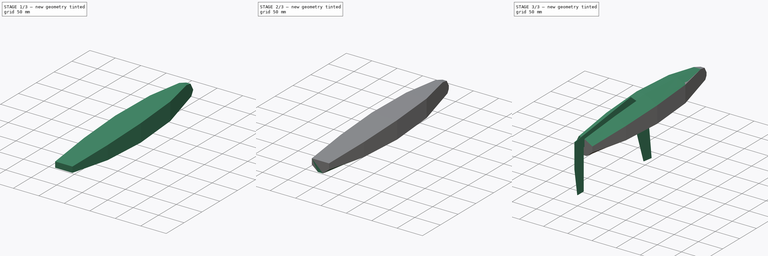
[diagram: build sequence overview — one tinted view per stage of 3, left to right]
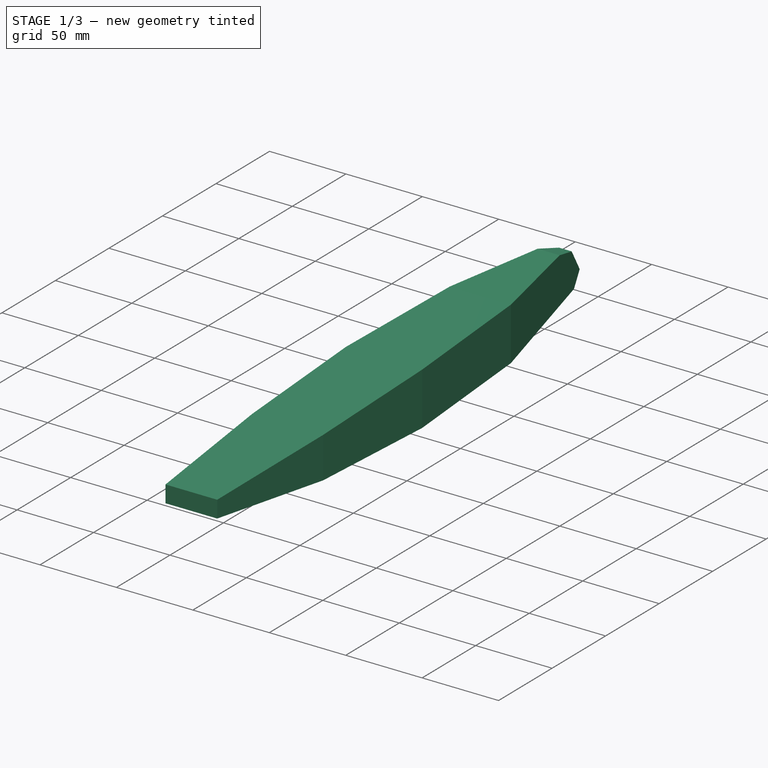
[diagram: stage 1 of 3 — iso view after this stage's code; geometry added in this stage tinted green]
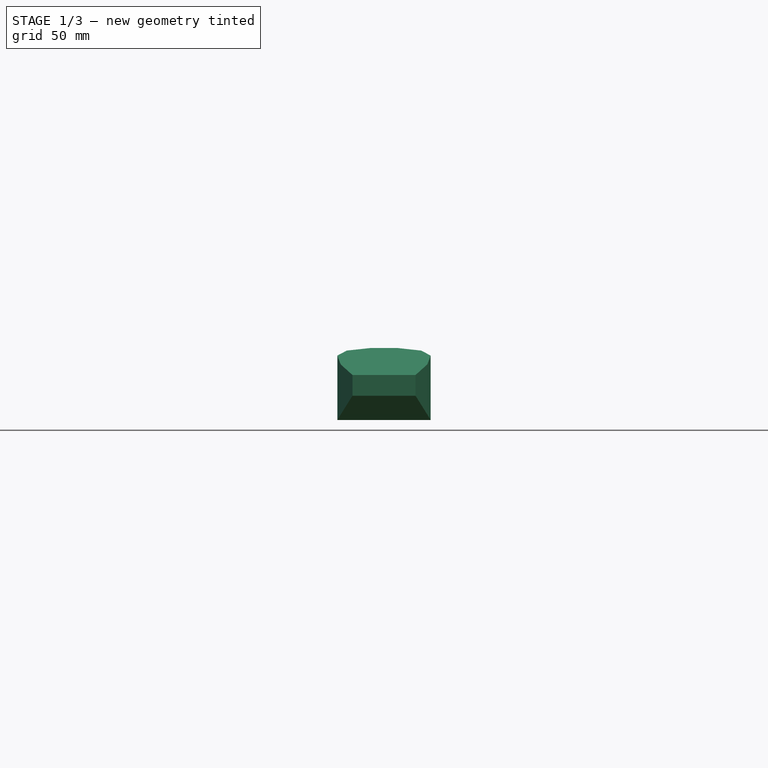
[diagram: stage 1 of 3 — front view after this stage's code; geometry added in this stage tinted green]
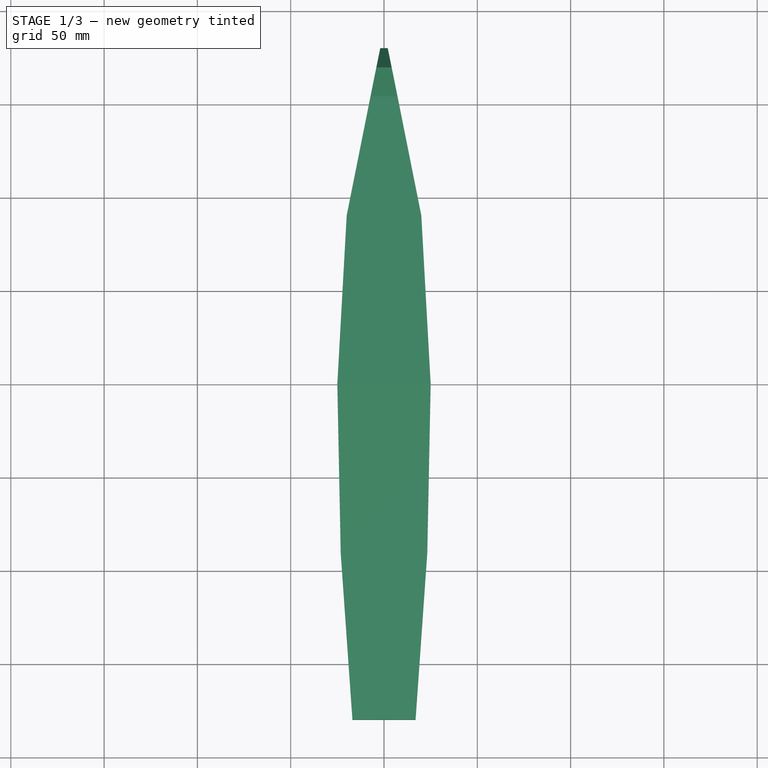
[diagram: stage 1 of 3 — top view after this stage's code; geometry added in this stage tinted green]
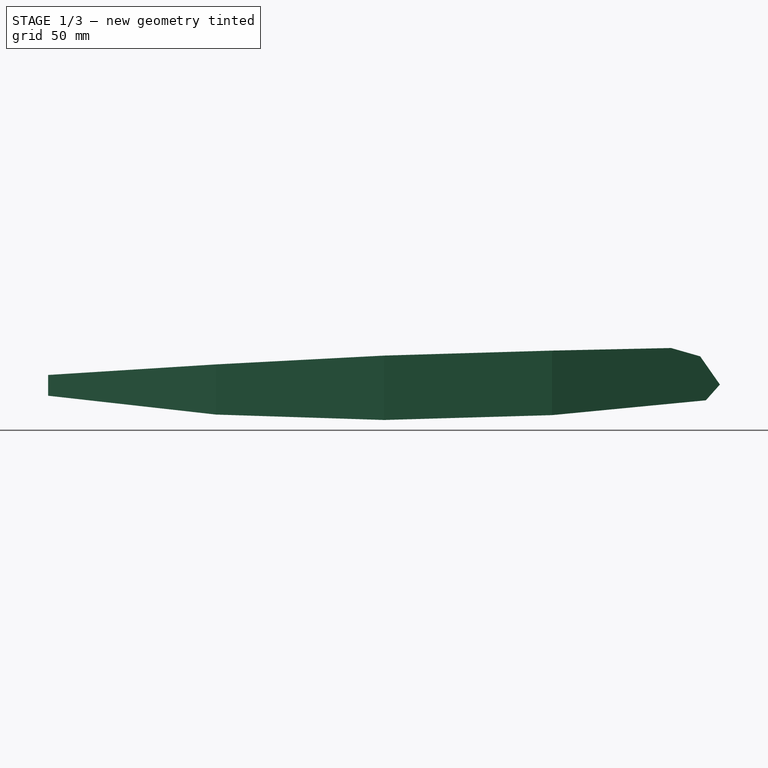
[diagram: stage 1 of 3 — right view after this stage's code; geometry added in this stage tinted green]
FCSTD DOCUMENT  (FreeCAD 0.18R4 (GitTag))
Label: O-cat
License: All rights reserved
LicenseURL: http://en.wikipedia.org/wiki/All_rights_reserved
objects: Sketcher::SketchObject×17, PartDesign::Body×3, PartDesign::Pad×2, PartDesign::AdditiveLoft×2, PartDesign::Pocket×1, PartDesign::Chamfer×1, App::Part×1
note: 31 computed .brp shape members not serialized (recipe doc carries the construction recipe); baked Part::Feature solids carry a one-line shape summary decoded from their .brp

FEATURE [Sketcher::SketchObject] Sketch
  MapMode = 5
  Support = -> [XY_Plane]
  sketch-geometry (20):
    g0: LineSegment [constr] StartX=0 StartY=0 StartZ=0 EndX=0 EndY=180 EndZ=0
    g1: LineSegment [constr] StartX=0 StartY=0 StartZ=0 EndX=0 EndY=-180 EndZ=0
    g2: LineSegment StartX=-16.9104 StartY=-180 StartZ=0 EndX=0 EndY=-180 EndZ=0
    g3: LineSegment StartX=0 StartY=-180 StartZ=0 EndX=16.9104 EndY=-180 EndZ=0
    g4: LineSegment [constr] StartX=-25 StartY=0 StartZ=0 EndX=0 EndY=0 EndZ=0
    g5: LineSegment [constr] StartX=0 StartY=0 StartZ=0 EndX=25 EndY=0 EndZ=0
    g6: LineSegment StartX=-25 StartY=0 StartZ=0 EndX=-20 EndY=90 EndZ=0
    g7: LineSegment StartX=20 StartY=90 StartZ=0 EndX=25 EndY=0 EndZ=0
    g8: LineSegment [constr] StartX=-20 StartY=90 StartZ=0 EndX=0 EndY=90 EndZ=0
    g9: LineSegment [constr] StartX=0 StartY=90 StartZ=0 EndX=20 EndY=90 EndZ=0
    g10: LineSegment [constr] StartX=0 StartY=-90 StartZ=0 EndX=-23.2133 EndY=-90 EndZ=0
    g11: LineSegment [constr] StartX=0 StartY=-90 StartZ=0 EndX=23.2133 EndY=-90 EndZ=0
    g12: LineSegment StartX=-25 StartY=0 StartZ=0 EndX=-23.2133 EndY=-90 EndZ=0
    g13: LineSegment StartX=25 StartY=0 StartZ=0 EndX=23.2133 EndY=-90 EndZ=0
    g14: LineSegment StartX=23.2133 StartY=-90 StartZ=0 EndX=16.9104 EndY=-180 EndZ=0
    g15: LineSegment StartX=-16.9104 StartY=-180 StartZ=0 EndX=-23.2133 EndY=-90 EndZ=0
    g16: LineSegment StartX=0 StartY=180 StartZ=0 EndX=2 EndY=180 EndZ=0
    g17: LineSegment StartX=2 StartY=180 StartZ=0 EndX=20 EndY=90 EndZ=0
    g18: LineSegment StartX=-20 StartY=90 StartZ=0 EndX=-2 EndY=180 EndZ=0
    g19: LineSegment StartX=-2 StartY=180 StartZ=0 EndX=0 EndY=180 EndZ=0
  constraints (52):
    c: Coincident(g0,g-1)
    c: PointOnObject(g0,g-2)
    c: Coincident(g1,g0)
    c: PointOnObject(g1,g-2)
    c: Equal(g1,g0)
    c: DistanceY(g1,g0) = 360
    c: PointOnObject(g6,g-1)
    c: Coincident(g2,g1)
    c: Horizontal(g2)
    c: PointOnObject(g7,g-1)
    c: Coincident(g3,g1)
    c: Horizontal(g3)
    c: Equal(g2,g3)
    c: Coincident(g4,g0)
    c: Coincident(g5,g0)
    c: Equal(g5,g4)
    c: Coincident(g8,g6)
    c: PointOnObject(g8,g0)
    c: Coincident(g9,g8)
    c: Horizontal(g9)
    c: Horizontal(g8)
    c: Equal(g8,g9)
    c: DistanceX(g6,g7) = 50
    c: DistanceX(g6,g7) = 40
    c: DistanceY(g-1,g6) = 90
    c: PointOnObject(g10,g1)
    c: Coincident(g11,g10)
    c: Horizontal(g11)
    c: Horizontal(g10)
    c: Equal(g10,g11)
    c: DistanceY(g10,g-1) = 90
    c: Coincident(g12,g6)
    c: Coincident(g12,g10)
    c: Coincident(g13,g7)
    c: Coincident(g13,g11)
    c: Coincident(g14,g11)
    c: Coincident(g14,g3)
    c: Coincident(g15,g2)
    c: Coincident(g15,g10)
    c: Coincident(g16,g0)
    c: Horizontal(g16)
    c: Coincident(g17,g16)
    c: Coincident(g17,g7)
    c: Coincident(g18,g6)
    c: Coincident(g19,g18)
    c: Coincident(g19,g16)
    c: Horizontal(g19)
    c: Equal(g19,g16)
    c: DistanceX(g18,g16) = 4
    c: Coincident(g5,g7)
    c: Coincident(g4,g6)
    c: Coincident(g9,g7)
FEATURE [PartDesign::Pad] Pad
  Length = 60
  Length2 = 100
  Profile = -> Sketch
  Refine = true
  Reversed = true
  Type = 0
FEATURE [Sketcher::SketchObject] Sketch001
  MapMode = 5
  Placement = pos=(0,0,0) rot=(0.57735,0.57735,0.57735;2.0944rad)
  Support = -> [YZ_Plane]
  sketch-geometry (18):
    g0: LineSegment StartX=-180 StartY=-35.8766 StartZ=0 EndX=-180 EndY=-47 EndZ=0
    g1: LineSegment StartX=180 StartY=-41.0061 StartZ=0 EndX=172.49 EndY=-49.4545 EndZ=0
    g2: LineSegment StartX=-228.224 StartY=155.975 StartZ=0 EndX=260.027 EndY=155.975 EndZ=0
    g3: LineSegment StartX=260.027 StartY=155.975 StartZ=0 EndX=260.027 EndY=-170.497 EndZ=0
    g4: LineSegment StartX=260.027 StartY=-170.497 StartZ=0 EndX=-228.224 EndY=-170.497 EndZ=0
    g5: LineSegment StartX=-228.224 StartY=-170.497 StartZ=0 EndX=-228.224 EndY=155.975 EndZ=0
    g6: LineSegment StartX=-180 StartY=-47 StartZ=0 EndX=-90 EndY=-57.0919 EndZ=0
    g7: LineSegment StartX=90 StartY=-57.3996 StartZ=0 EndX=172.49 EndY=-49.4545 EndZ=0
    g8: LineSegment [constr] StartX=90 StartY=-57.3996 StartZ=0 EndX=90 EndY=-22.8162 EndZ=0
    g9: LineSegment StartX=0 StartY=-25.4918 StartZ=0 EndX=90 EndY=-22.8162 EndZ=0
    g10: LineSegment StartX=0 StartY=-25.4918 StartZ=0 EndX=-90 EndY=-30.2142 EndZ=0
    g11: LineSegment [constr] StartX=-90 StartY=-30.2142 StartZ=0 EndX=-90 EndY=-57.0919 EndZ=0
    g12: LineSegment StartX=-90 StartY=-30.2142 StartZ=0 EndX=-180 EndY=-35.8766 EndZ=0
    g13: LineSegment StartX=90 StartY=-22.8162 StartZ=0 EndX=153.879 EndY=-21.4306 EndZ=0
    g14: LineSegment StartX=-90 StartY=-57.0919 StartZ=0 EndX=0 EndY=-60 EndZ=0
    g15: LineSegment StartX=0 StartY=-60 StartZ=0 EndX=90 EndY=-57.3996 EndZ=0
    g16: LineSegment StartX=153.879 StartY=-21.4306 StartZ=0 EndX=169.448 EndY=-25.9084 EndZ=0
    g17: LineSegment StartX=169.448 StartY=-25.9084 StartZ=0 EndX=180 EndY=-41.0061 EndZ=0
  constraints (35):
    c: Vertical(g0)
    c: DistanceX(g-1,g1) = 180
    c: DistanceX(g0,g-1) = 180
    c: Coincident(g2,g3)
    c: Coincident(g3,g4)
    c: Coincident(g4,g5)
    c: Coincident(g5,g2)
    c: Horizontal(g2)
    c: Horizontal(g4)
    c: Vertical(g3)
    c: Vertical(g5)
    c: Coincident(g0,g6)
    c: Coincident(g7,g1)
    c: Vertical(g8)
    c: Coincident(g9,g8)
    c: DistanceX(g-1,g8) = 90
    c: DistanceX(g6,g-1) = 90
    c: Coincident(g10,g9)
    c: Coincident(g11,g10)
    c: Coincident(g11,g6)
    c: Vertical(g11)
    c: Coincident(g12,g10)
    c: Coincident(g12,g0)
    c: Coincident(g13,g9)
    c: Coincident(g14,g6)
    c: PointOnObject(g14,g-2)
    c: Coincident(g15,g14)
    c: Coincident(g15,g7)
    c: Coincident(g7,g8)
    c: Coincident(g16,g13)
    c: Coincident(g17,g16)
    c: Coincident(g17,g1)
    c: DistanceX(g9,g-1) = 0
    c: DistanceY(g14,g-1) = 60
    c: DistanceY(g0,g-1) = 47
FEATURE [PartDesign::Pocket] Pocket
  BaseFeature = -> Pad
  Length = 5
  Length2 = 100
  Midplane = true
  Profile = -> Sketch001
  Refine = true
  Type = 1
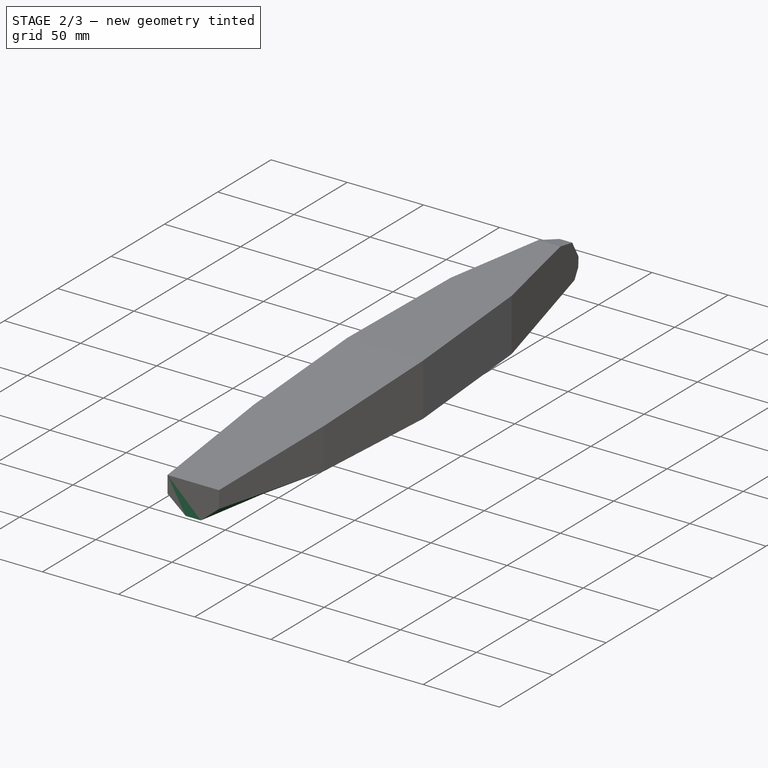
[diagram: stage 2 of 3 — iso view after this stage's code; geometry added in this stage tinted green]
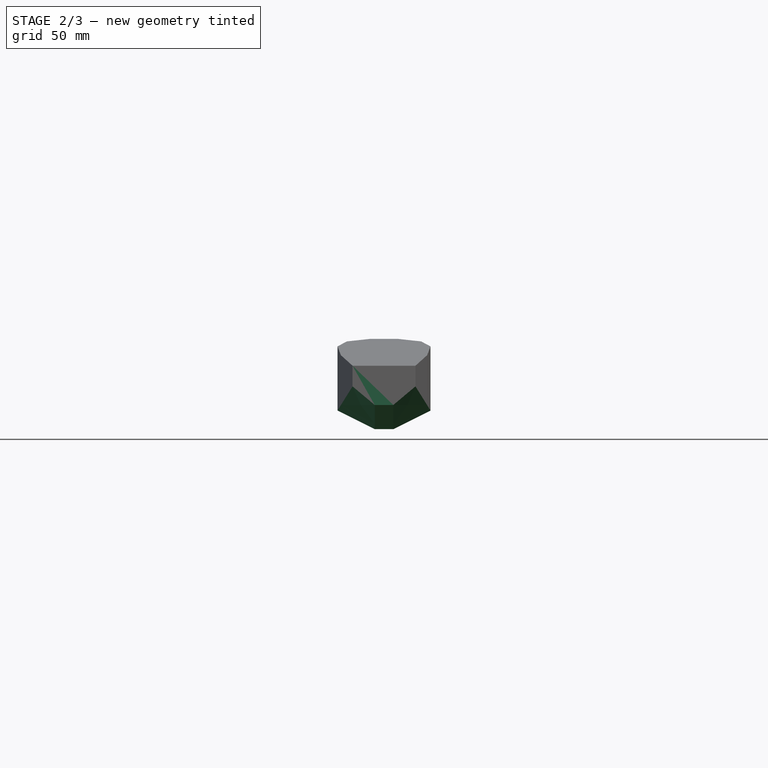
[diagram: stage 2 of 3 — front view after this stage's code; geometry added in this stage tinted green]
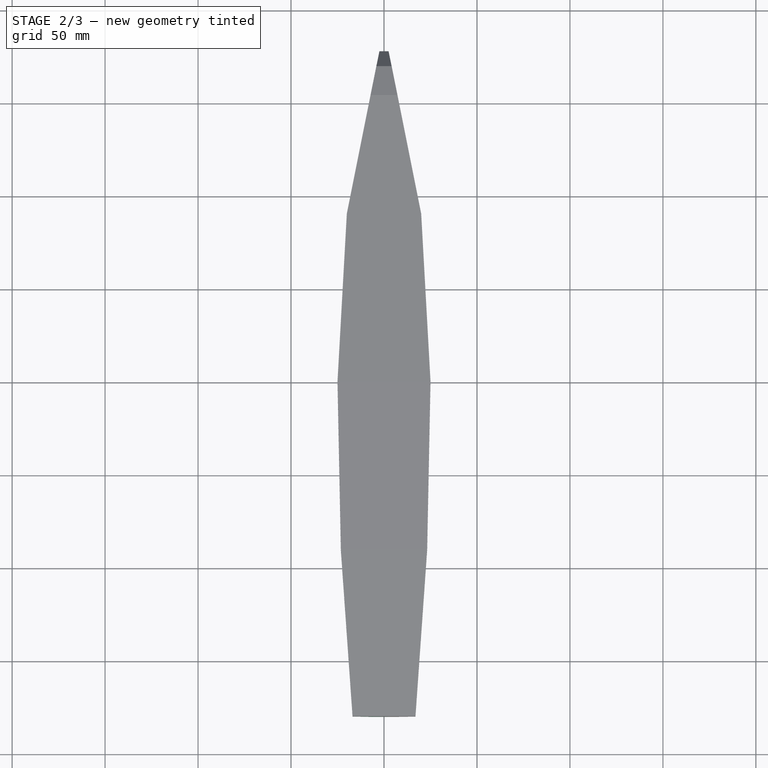
[diagram: stage 2 of 3 — top view after this stage's code; geometry added in this stage tinted green]
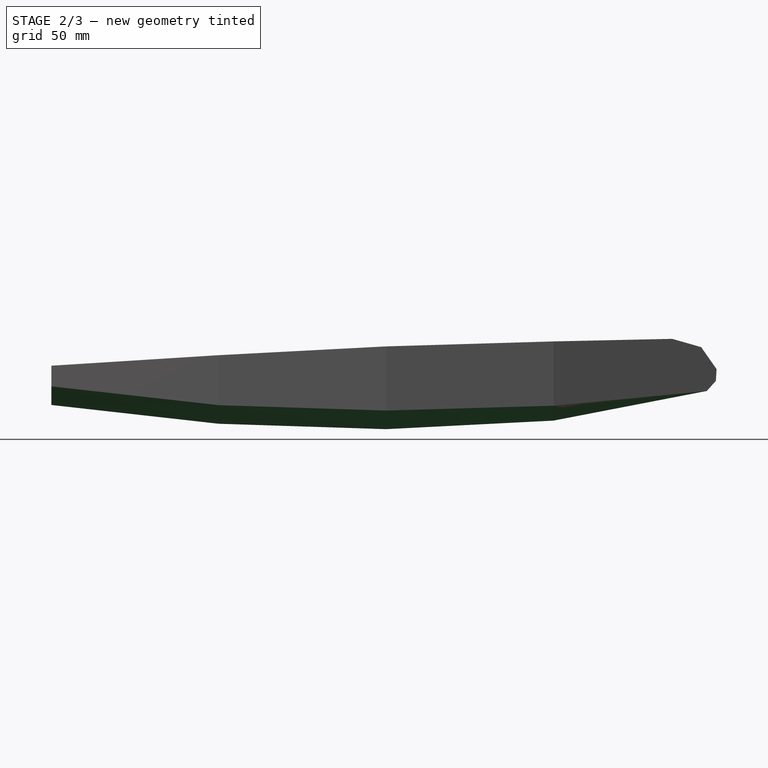
[diagram: stage 2 of 3 — right view after this stage's code; geometry added in this stage tinted green]
FEATURE [PartDesign::Body] Body001
  Group = -> [Sketch003,Pad001]
  Origin = -> Origin001
  Placement = pos=(0,11,0) rot=(0,0,1;0rad)
  Tip = -> Pad001
FEATURE [Sketcher::SketchObject] Sketch005
  AttachmentOffset = pos=(0,0,90) rot=(0,0,1;0rad)
  ExternalGeometry = -> [Pocket]
  MapMode = 5
  Placement = pos=(0,-90,-2e-14) rot=(1,0,0;1.5708rad)
  Support = -> [XZ_Plane]
  sketch-geometry (4):
    g0: LineSegment StartX=-23.2133 StartY=-57.0919 StartZ=0 EndX=23.2133 EndY=-57.0919 EndZ=0
    g1: LineSegment StartX=23.2133 StartY=-57.0919 StartZ=0 EndX=5 EndY=-67.0919 EndZ=0
    g2: LineSegment StartX=5 StartY=-67.0919 StartZ=0 EndX=-5 EndY=-67.0919 EndZ=0
    g3: LineSegment StartX=-5 StartY=-67.0919 StartZ=0 EndX=-23.2133 EndY=-57.0919 EndZ=0
  constraints (10):
    c: Coincident(g-3,g0)
    c: Coincident(g0,g-3)
    c: Coincident(g0,g1)
    c: Coincident(g1,g2)
    c: Coincident(g2,g3)
    c: Coincident(g3,g0)
    c: Horizontal(g2)
    c: Equal(g3,g1)
    c: DistanceX(g2,g2) = 10
    c: DistanceY(g2,g0) = 10
FEATURE [Sketcher::SketchObject] Sketch006
  ExternalGeometry = -> [Pocket]
  MapMode = 5
  Placement = pos=(0,0,0) rot=(1,0,0;1.5708rad)
  Support = -> [XZ_Plane]
  sketch-geometry (4):
    g0: LineSegment StartX=-25 StartY=-60 StartZ=0 EndX=25 EndY=-60 EndZ=0
    g1: LineSegment StartX=25 StartY=-60 StartZ=0 EndX=5 EndY=-70 EndZ=0
    g2: LineSegment StartX=5 StartY=-70 StartZ=0 EndX=-5 EndY=-70 EndZ=0
    g3: LineSegment StartX=-5 StartY=-70 StartZ=0 EndX=-25 EndY=-60 EndZ=0
  constraints (10):
    c: Coincident(g0,g1)
    c: Coincident(g1,g2)
    c: Coincident(g2,g3)
    c: Coincident(g3,g0)
    c: Coincident(g0,g-3)
    c: Coincident(g0,g-3)
    c: Horizontal(g2)
    c: Equal(g3,g1)
    c: DistanceY(g2,g0) = 10
    c: DistanceX(g2,g2) = 10
FEATURE [Sketcher::SketchObject] Sketch007
  AttachmentOffset = pos=(0,0,-90) rot=(0,0,1;0rad)
  ExternalGeometry = -> [Pocket]
  MapMode = 5
  Placement = pos=(0,90,2e-14) rot=(1,0,0;1.5708rad)
  Support = -> [XZ_Plane]
  sketch-geometry (4):
    g0: LineSegment StartX=-20 StartY=-57.3996 StartZ=0 EndX=20 EndY=-57.3996 EndZ=0
    g1: LineSegment StartX=20 StartY=-57.3996 StartZ=0 EndX=4 EndY=-65.3996 EndZ=0
    g2: LineSegment StartX=4 StartY=-65.3996 StartZ=0 EndX=-4 EndY=-65.3996 EndZ=0
    g3: LineSegment StartX=-4 StartY=-65.3996 StartZ=0 EndX=-20 EndY=-57.3996 EndZ=0
  constraints (10):
    c: Coincident(g-3,g0)
    c: Coincident(g0,g-3)
    c: Coincident(g0,g1)
    c: Coincident(g1,g2)
    c: Coincident(g2,g3)
    c: Coincident(g3,g0)
    c: Horizontal(g2)
    c: Equal(g1,g3)
    c: DistanceX(g2,g2) = 8
    c: DistanceY(g2,g0) = 8
FEATURE [Sketcher::SketchObject] Sketch008
  AttachmentOffset = pos=(0,0,180) rot=(0,0,1;0rad)
  ExternalGeometry = -> [Pocket]
  MapMode = 5
  Placement = pos=(0,-180,-4e-14) rot=(1,0,0;1.5708rad)
  Support = -> [XZ_Plane]
  sketch-geometry (4):
    g0: LineSegment StartX=-16.9104 StartY=-47 StartZ=0 EndX=16.9104 EndY=-47 EndZ=0
    g1: LineSegment StartX=16.9104 StartY=-47 StartZ=0 EndX=5 EndY=-57 EndZ=0
    g2: LineSegment StartX=5 StartY=-57 StartZ=0 EndX=-5 EndY=-57 EndZ=0
    g3: LineSegment StartX=-5 StartY=-57 StartZ=0 EndX=-16.9104 EndY=-47 EndZ=0
  constraints (10):
    c: Coincident(g-3,g0)
    c: Coincident(g0,g-3)
    c: Coincident(g0,g1)
    c: Coincident(g1,g2)
    c: Horizontal(g2)
    c: Coincident(g2,g3)
    c: Coincident(g3,g0)
    c: Equal(g3,g1)
    c: DistanceX(g2,g2) = 10
    c: DistanceY(g2,g0) = 10
FEATURE [PartDesign::AdditiveLoft] AdditiveLoft
  BaseFeature = -> Pocket
  Closed = false
  Profile = -> Pocket [Face16]
  Refine = true
  Ruled = true
  Sections = -> [Sketch007,Sketch006,Sketch005,Sketch008]
FEATURE [PartDesign::Chamfer] Chamfer
  Base = -> AdditiveLoft [Edge51]
  BaseFeature = -> AdditiveLoft
  Size = 4
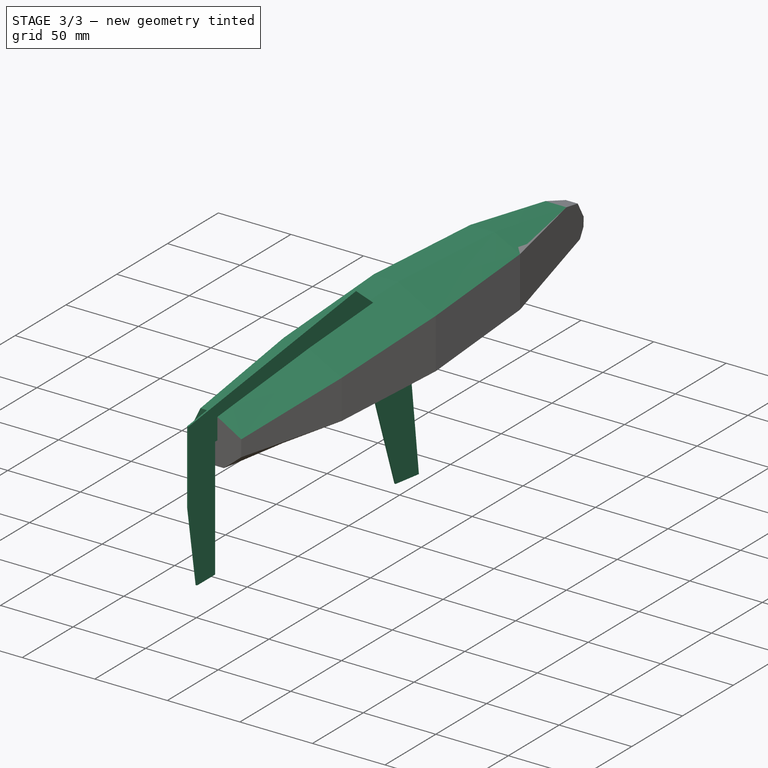
[diagram: stage 3 of 3 — iso view after this stage's code; geometry added in this stage tinted green]
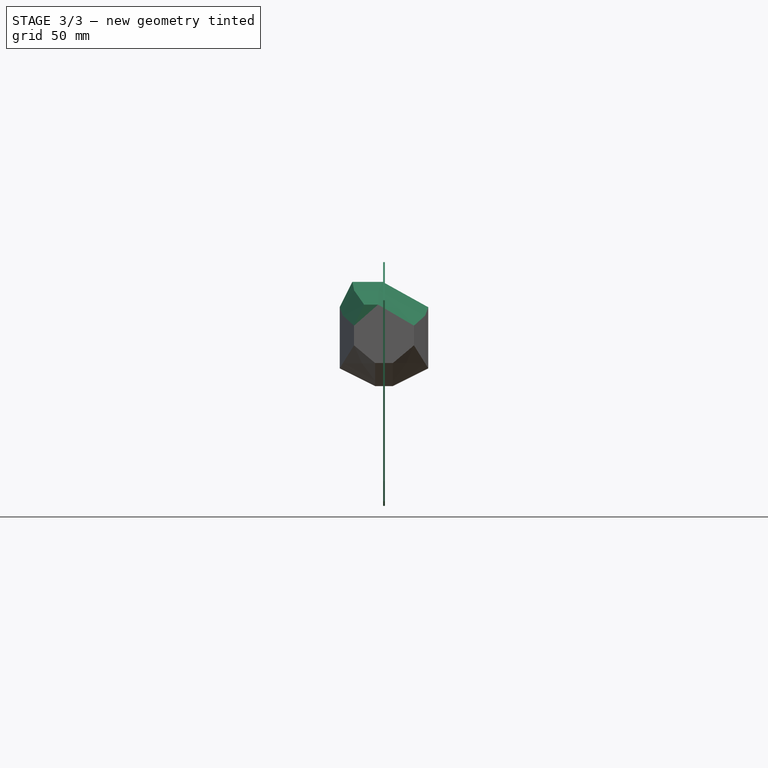
[diagram: stage 3 of 3 — front view after this stage's code; geometry added in this stage tinted green]
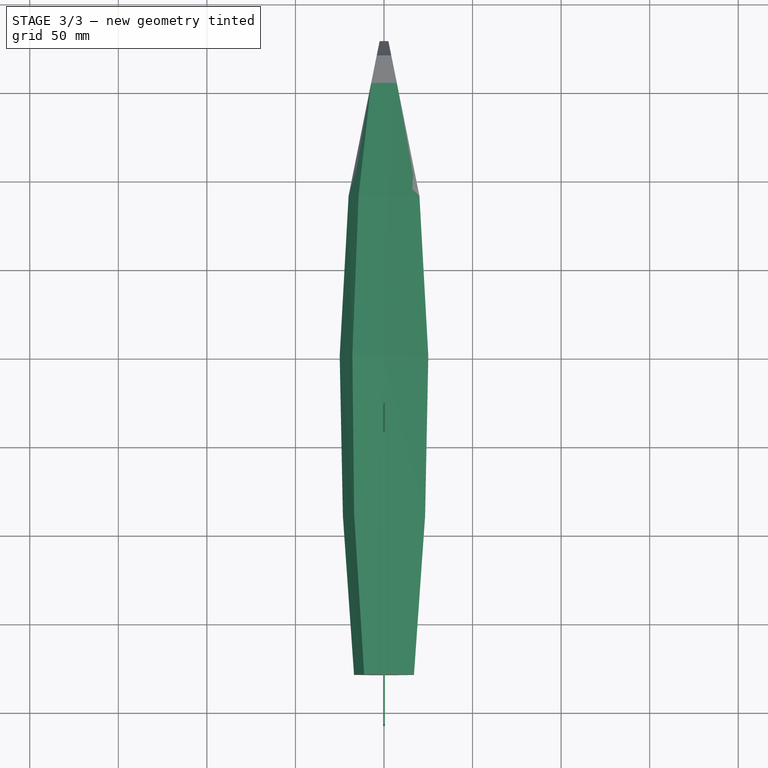
[diagram: stage 3 of 3 — top view after this stage's code; geometry added in this stage tinted green]
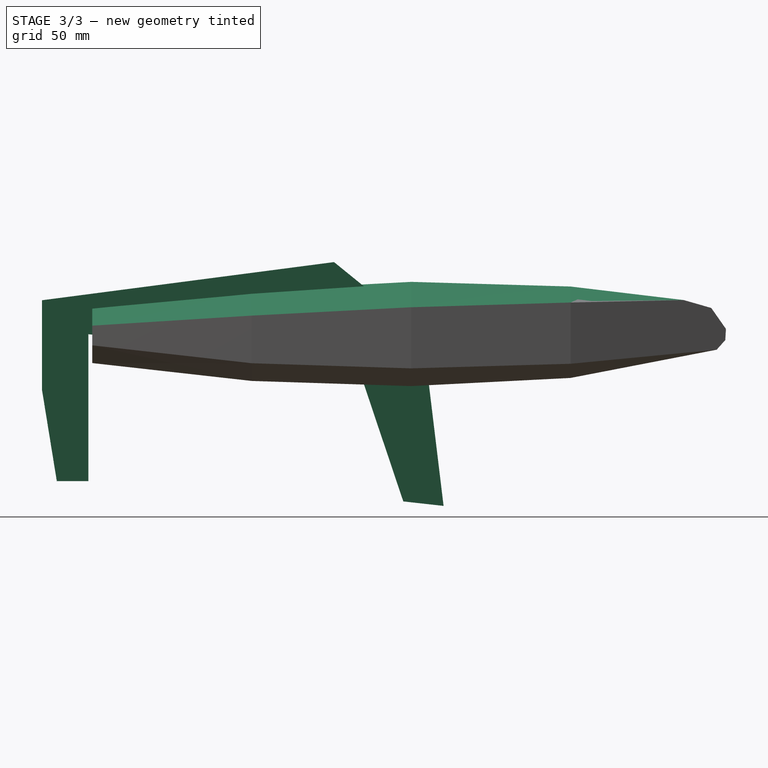
[diagram: stage 3 of 3 — right view after this stage's code; geometry added in this stage tinted green]
FEATURE [Sketcher::SketchObject] Sketch003
  MapMode = 5
  Placement = pos=(0,0,0) rot=(0.57735,0.57735,0.57735;2.0944rad)
  Support = -> [YZ_Plane001]
  sketch-geometry (10):
    g0: LineSegment StartX=6.5778 StartY=-40.6415 StartZ=0 EndX=18.3025 EndY=-137.642 EndZ=0
    g1: LineSegment StartX=18.3025 StartY=-137.642 StartZ=0 EndX=-4.42831 EndY=-135.101 EndZ=0
    g2: LineSegment StartX=-4.42831 StartY=-135.101 StartZ=0 EndX=-30.9265 EndY=-56.3078 EndZ=0
    g3: LineSegment StartX=-43.5369 StartY=0 StartZ=0 EndX=6.5778 EndY=-40.6415 EndZ=0
    g4: LineSegment StartX=-30.9265 StartY=-56.3078 StartZ=0 EndX=-182.248 EndY=-40.7248 EndZ=0
    g5: LineSegment StartX=-182.248 StartY=-40.7248 StartZ=0 EndX=-182.248 EndY=-123.627 EndZ=0
    g6: LineSegment StartX=-182.248 StartY=-123.627 StartZ=0 EndX=-200.052 EndY=-123.627 EndZ=0
    g7: LineSegment StartX=-200.052 StartY=-123.627 StartZ=0 EndX=-208.371 EndY=-72.3167 EndZ=0
    g8: LineSegment StartX=-208.371 StartY=-72.3167 StartZ=0 EndX=-208.371 EndY=-21.5374 EndZ=0
    g9: LineSegment StartX=-208.371 StartY=-21.5374 StartZ=0 EndX=-43.5369 EndY=0 EndZ=0
  constraints (14):
    c: Coincident(g0,g1)
    c: Coincident(g1,g2)
    c: PointOnObject(g3,g-1)
    c: Coincident(g3,g0)
    c: Coincident(g4,g2)
    c: Coincident(g5,g4)
    c: Vertical(g5)
    c: Coincident(g6,g5)
    c: Horizontal(g6)
    c: Coincident(g7,g6)
    c: Coincident(g8,g7)
    c: Vertical(g8)
    c: Coincident(g9,g8)
    c: Coincident(g9,g3)
FEATURE [PartDesign::Pad] Pad001
  Length = 1
  Length2 = 100
  Midplane = true
  Placement = pos=(0,0,0) rot=(0.57735,0.57735,0.57735;2.0944rad)
  Profile = -> Sketch003
  Refine = true
  Type = 0
FEATURE [Sketcher::SketchObject] Sketch009
  AttachmentOffset = pos=(0,0,-90) rot=(0,0,1;0rad)
  ExternalGeometry = -> [Chamfer]
  MapMode = 5
  Placement = pos=(0,90,2e-14) rot=(1,0,0;1.5708rad)
  Support = -> [XZ_Plane]
  sketch-geometry (4):
    g0: LineSegment StartX=-20 StartY=-22.8162 StartZ=0 EndX=-14.3498 EndY=-13.7894 EndZ=0
    g1: LineSegment StartX=-14.3498 StartY=-13.7894 StartZ=0 EndX=2.30168 EndY=-13.7894 EndZ=0
    g2: LineSegment StartX=2.30168 StartY=-13.7894 StartZ=0 EndX=20 EndY=-22.8162 EndZ=0
    g3: LineSegment StartX=20 StartY=-22.8162 StartZ=0 EndX=-20 EndY=-22.8162 EndZ=0
  constraints (7):
    c: Coincident(g-3,g0)
    c: Coincident(g0,g1)
    c: Horizontal(g1)
    c: Coincident(g1,g2)
    c: Coincident(g2,g-3)
    c: Coincident(g2,g3)
    c: Coincident(g3,g0)
FEATURE [Sketcher::SketchObject] Sketch010
  ExternalGeometry = -> [Chamfer]
  MapMode = 5
  Placement = pos=(0,0,0) rot=(1,0,0;1.5708rad)
  Support = -> [XZ_Plane]
  sketch-geometry (4):
    g0: LineSegment StartX=25 StartY=-25.4918 StartZ=0 EndX=-0.791641 EndY=-11.1616 EndZ=0
    g1: LineSegment StartX=-0.791641 StartY=-11.1616 StartZ=0 EndX=-17.8498 EndY=-11.1616 EndZ=0
    g2: LineSegment StartX=-17.8498 StartY=-11.1616 StartZ=0 EndX=-25 EndY=-25.4918 EndZ=0
    g3: LineSegment StartX=-25 StartY=-25.4918 StartZ=0 EndX=25 EndY=-25.4918 EndZ=0
  constraints (7):
    c: Coincident(g-3,g0)
    c: Coincident(g0,g1)
    c: Horizontal(g1)
    c: Coincident(g2,g1)
    c: Coincident(g2,g-3)
    c: Coincident(g3,g2)
    c: Coincident(g3,g0)
FEATURE [Sketcher::SketchObject] Sketch011
  AttachmentOffset = pos=(0,0,90) rot=(0,0,1;0rad)
  ExternalGeometry = -> [Chamfer]
  MapMode = 5
  Placement = pos=(0,-90,-2e-14) rot=(1,0,0;1.5708rad)
  Support = -> [XZ_Plane]
  sketch-geometry (4):
    g0: LineSegment StartX=-23.2133 StartY=-30.2142 StartZ=0 EndX=-16.8415 EndY=-15.9999 EndZ=0
    g1: LineSegment StartX=-16.8415 StartY=-15.9999 StartZ=0 EndX=-2.96919 EndY=-15.9999 EndZ=0
    g2: LineSegment StartX=-2.96919 StartY=-15.9999 StartZ=0 EndX=23.2133 EndY=-30.2142 EndZ=0
    g3: LineSegment StartX=23.2133 StartY=-30.2142 StartZ=0 EndX=-23.2133 EndY=-30.2142 EndZ=0
  constraints (7):
    c: Coincident(g0,g1)
    c: Coincident(g1,g2)
    c: Coincident(g2,g3)
    c: Coincident(g0,g3)
    c: Coincident(g0,g-3)
    c: Coincident(g2,g-3)
    c: Horizontal(g1)
FEATURE [Sketcher::SketchObject] Sketch012
  AttachmentOffset = pos=(0,0,180) rot=(0,0,1;0rad)
  ExternalGeometry = -> [Chamfer]
  MapMode = 5
  Placement = pos=(0,-180,-4e-14) rot=(1,0,0;1.5708rad)
  Support = -> [XZ_Plane]
  sketch-geometry (4):
    g0: LineSegment StartX=-16.9104 StartY=-35.8766 StartZ=0 EndX=-11.2085 EndY=-24.0034 EndZ=0
    g1: LineSegment StartX=-11.2085 StartY=-24.0034 StartZ=0 EndX=-3.36832 EndY=-24.0034 EndZ=0
    g2: LineSegment StartX=-3.36832 StartY=-24.0034 StartZ=0 EndX=16.9104 EndY=-35.8766 EndZ=0
    g3: LineSegment StartX=16.9104 StartY=-35.8766 StartZ=0 EndX=-16.9104 EndY=-35.8766 EndZ=0
  constraints (7):
    c: Coincident(g-3,g0)
    c: Coincident(g0,g1)
    c: Horizontal(g1)
    c: Coincident(g1,g2)
    c: Coincident(g2,g-3)
    c: Coincident(g2,g3)
    c: Coincident(g3,g0)
FEATURE [PartDesign::AdditiveLoft] AdditiveLoft001
  BaseFeature = -> Chamfer
  Closed = false
  Profile = -> Chamfer [Face6]
  Refine = true
  Ruled = true
  Sections = -> [Sketch009,Sketch010,Sketch011,Sketch012]
FEATURE [PartDesign::Body] Body
  Group = -> [Sketch,Pad,Sketch001,Pocket,Sketch005,Sketch006,Sketch007,Sketch008,AdditiveLoft,Chamfer,Sketch009,Sketch010,Sketch011,Sketch012,AdditiveLoft001]
  Origin = -> Origin
  Tip = -> AdditiveLoft001
FEATURE [Sketcher::SketchObject] Sketch013
  AttachmentOffset = pos=(0,0,180) rot=(0,0,1;0rad)
  MapMode = 5
  Placement = pos=(0,-180,4e-14) rot=(1,0,0;1.5708rad)
  Support = -> [XZ_Plane003]
  sketch-geometry (24):
    g0: LineSegment StartX=-6.32168 StartY=-24.2228 StartZ=0 EndX=1.98196 EndY=-24.2228 EndZ=0
    g1: LineSegment StartX=1.98196 StartY=-24.2228 StartZ=0 EndX=10.2832 EndY=-35.9299 EndZ=0
    g2: LineSegment StartX=10.2832 StartY=-35.9299 StartZ=0 EndX=10.2832 EndY=-46.9373 EndZ=0
    g3: LineSegment StartX=10.2832 StartY=-46.9373 StartZ=0 EndX=4.96024 EndY=-57.0574 EndZ=0
    g4: LineSegment StartX=4.96024 StartY=-57.0574 StartZ=0 EndX=-4.86091 EndY=-57.0574 EndZ=0
    g5: LineSegment StartX=-4.86091 StartY=-57.0574 StartZ=0 EndX=-12.8395 EndY=-46.5342 EndZ=0
    g6: LineSegment StartX=-12.8395 StartY=-46.5342 StartZ=0 EndX=-12.8395 EndY=-36.1738 EndZ=0
    g7: LineSegment StartX=-12.8395 StartY=-36.1738 StartZ=0 EndX=-6.32168 EndY=-24.2228 EndZ=0
    g8: LineSegment StartX=-6.32168 StartY=-23.2228 StartZ=0 EndX=1.98196 EndY=-23.2228 EndZ=0
    g9: LineSegment StartX=2.7977 StartY=-23.6444 StartZ=0 EndX=11.0989 EndY=-35.3515 EndZ=0
    g10: LineSegment StartX=11.2832 StartY=-35.9299 StartZ=0 EndX=11.2832 EndY=-46.9373 EndZ=0
    g11: LineSegment StartX=11.1682 StartY=-47.4028 StartZ=0 EndX=5.84528 EndY=-57.523 EndZ=0
    g12: LineSegment StartX=4.96024 StartY=-58.0574 StartZ=0 EndX=-4.86091 EndY=-58.0574 EndZ=0
    g13: LineSegment StartX=-5.65777 StartY=-57.6616 StartZ=0 EndX=-13.6364 EndY=-47.1384 EndZ=0
    g14: LineSegment StartX=-13.8395 StartY=-46.5342 StartZ=0 EndX=-13.8395 EndY=-36.1738 EndZ=0
    g15: LineSegment StartX=-13.7175 StartY=-35.695 StartZ=0 EndX=-7.19961 EndY=-23.744 EndZ=0
    g16: ArcOfCircle CenterX=-6.32168 CenterY=-24.2228 CenterZ=0 NormalX=0 NormalY=0 NormalZ=1 AngleXU=0 Radius=1 StartAngle=1.5708 EndAngle=2.6423
    g17: ArcOfCircle CenterX=1.98196 CenterY=-24.2228 CenterZ=0 NormalX=0 NormalY=0 NormalZ=1 AngleXU=0 Radius=1 StartAngle=0.616792 EndAngle=1.5708
    g18: ArcOfCircle CenterX=10.2832 CenterY=-35.9299 CenterZ=0 NormalX=0 NormalY=0 NormalZ=1 AngleXU=0 Radius=1 StartAngle=-1.8e-15 EndAngle=0.616792
    g19: ArcOfCircle CenterX=10.2832 CenterY=-46.9373 CenterZ=0 NormalX=0 NormalY=0 NormalZ=1 AngleXU=0 Radius=1 StartAngle=5.79898 EndAngle=6.28319
    g20: ArcOfCircle CenterX=4.96024 CenterY=-57.0574 CenterZ=0 NormalX=0 NormalY=0 NormalZ=1 AngleXU=0 Radius=1 StartAngle=4.71239 EndAngle=5.79898
    g21: ArcOfCircle CenterX=-4.86091 CenterY=-57.0574 CenterZ=0 NormalX=0 NormalY=0 NormalZ=1 AngleXU=0 Radius=1 StartAngle=3.79032 EndAngle=4.71239
    g22: ArcOfCircle CenterX=-12.8395 CenterY=-46.5342 CenterZ=0 NormalX=0 NormalY=0 NormalZ=1 AngleXU=0 Radius=1 StartAngle=3.14159 EndAngle=3.79032
    g23: ArcOfCircle CenterX=-12.8395 CenterY=-36.1738 CenterZ=0 NormalX=0 NormalY=0 NormalZ=1 AngleXU=0 Radius=1 StartAngle=2.6423 EndAngle=3.14159
  constraints (44):
    c: Horizontal(g0)
    c: Coincident(g0,g1)
    c: Coincident(g1,g2)
    c: Vertical(g2)
    c: Coincident(g2,g3)
    c: Coincident(g3,g4)
    c: Horizontal(g4)
    c: Coincident(g4,g5)
    c: Coincident(g5,g6)
    c: Vertical(g6)
    c: Coincident(g6,g7)
    c: Coincident(g7,g0)
    c: Tangent(g15,g16) = 1.5708
    c: Tangent(g8,g16) = 1.5708
    c: Tangent(g8,g17) = 1.5708
    c: Tangent(g9,g17) = 1.5708
    c: Tangent(g9,g18) = 1.5708
    c: Tangent(g10,g18) = 1.5708
    c: Tangent(g10,g19) = 1.5708
    c: Tangent(g11,g19) = 1.5708
    c: Tangent(g11,g20) = 1.5708
    c: Tangent(g12,g20) = 1.5708
    c: Tangent(g12,g21) = 1.5708
    c: Tangent(g13,g21) = 1.5708
    c: Tangent(g13,g22) = 1.5708
    c: Tangent(g14,g22) = 1.5708
    c: Tangent(g14,g23) = 1.5708
    c: Tangent(g15,g23) = 1.5708
    c: Coincident(g16,g0)
    c: Coincident(g0,g17)
    c: Coincident(g18,g1)
    c: Coincident(g19,g2)
    c: Coincident(g20,g3)
    c: Coincident(g21,g4)
    c: Coincident(g22,g5)
    c: Coincident(g6,g23)
    c: Radius(g17) = 1
    c: Equal(g16,g17)
    c: Equal(g17,g18)
    c: Equal(g18,g19)
    c: Equal(g19,g20)
    c: Equal(g20,g21)
    c: Equal(g21,g22)
    c: Equal(g22,g23)
FEATURE [Sketcher::SketchObject] Sketch014
  AttachmentOffset = pos=(0,0,90) rot=(0,0,1;0rad)
  MapMode = 5
  Placement = pos=(0,-90,2e-14) rot=(1,0,0;1.5708rad)
  Support = -> [XZ_Plane003]
  sketch-geometry (24):
    g0: LineSegment StartX=-8.82392 StartY=-16.4459 StartZ=0 EndX=1.28875 EndY=-16.4459 EndZ=0
    g1: LineSegment StartX=1.28875 StartY=-16.4459 StartZ=0 EndX=13.7876 EndY=-29.825 EndZ=0
    g2: LineSegment StartX=13.7876 StartY=-29.825 StartZ=0 EndX=13.7876 EndY=-56.885 EndZ=0
    g3: LineSegment StartX=13.7876 StartY=-56.885 StartZ=0 EndX=4.98346 EndY=-67.1267 EndZ=0
    g4: LineSegment StartX=4.98346 StartY=-67.1267 StartZ=0 EndX=-5.21136 EndY=-67.1267 EndZ=0
    g5: LineSegment StartX=-5.21136 StartY=-67.1267 StartZ=0 EndX=-16.454 EndY=-56.5917 EndZ=0
    g6: LineSegment StartX=-16.454 StartY=-56.5917 StartZ=0 EndX=-16.454 EndY=-30.0808 EndZ=0
    g7: LineSegment StartX=-16.454 StartY=-30.0808 StartZ=0 EndX=-8.82392 EndY=-16.4459 EndZ=0
    g8: LineSegment StartX=-8.82392 StartY=-15.4459 StartZ=0 EndX=1.28875 EndY=-15.4459 EndZ=0
    g9: LineSegment StartX=2.01949 StartY=-15.7632 StartZ=0 EndX=14.5183 EndY=-29.1423 EndZ=0
    g10: LineSegment StartX=14.7876 StartY=-29.825 StartZ=0 EndX=14.7876 EndY=-56.885 EndZ=0
    g11: LineSegment StartX=14.5459 StartY=-57.5369 StartZ=0 EndX=5.74178 EndY=-67.7786 EndZ=0
    g12: LineSegment StartX=4.98346 StartY=-68.1267 StartZ=0 EndX=-5.21136 EndY=-68.1267 EndZ=0
    g13: LineSegment StartX=-5.89513 StartY=-67.8564 StartZ=0 EndX=-17.1378 EndY=-57.3214 EndZ=0
    g14: LineSegment StartX=-17.454 StartY=-56.5917 StartZ=0 EndX=-17.454 EndY=-30.0808 EndZ=0
    g15: LineSegment StartX=-17.3267 StartY=-29.5925 StartZ=0 EndX=-9.69657 EndY=-15.9575 EndZ=0
    g16: ArcOfCircle CenterX=-8.82392 CenterY=-16.4459 CenterZ=0 NormalX=0 NormalY=0 NormalZ=1 AngleXU=0 Radius=1 StartAngle=1.5708 EndAngle=2.63141
    g17: ArcOfCircle CenterX=1.28875 CenterY=-16.4459 CenterZ=0 NormalX=0 NormalY=0 NormalZ=1 AngleXU=0 Radius=1 StartAngle=0.751396 EndAngle=1.5708
    g18: ArcOfCircle CenterX=13.7876 CenterY=-29.825 CenterZ=0 NormalX=0 NormalY=0 NormalZ=1 AngleXU=0 Radius=1 StartAngle=0 EndAngle=0.751396
    g19: ArcOfCircle CenterX=13.7876 CenterY=-56.885 CenterZ=0 NormalX=0 NormalY=0 NormalZ=1 AngleXU=0 Radius=1 StartAngle=5.57312 EndAngle=6.28319
    g20: ArcOfCircle CenterX=4.98346 CenterY=-67.1267 CenterZ=0 NormalX=0 NormalY=0 NormalZ=1 AngleXU=0 Radius=1 StartAngle=4.71239 EndAngle=5.57312
    g21: ArcOfCircle CenterX=-5.21136 CenterY=-67.1267 CenterZ=0 NormalX=0 NormalY=0 NormalZ=1 AngleXU=0 Radius=1 StartAngle=3.95947 EndAngle=4.71239
    g22: ArcOfCircle CenterX=-16.454 CenterY=-56.5917 CenterZ=0 NormalX=0 NormalY=0 NormalZ=1 AngleXU=0 Radius=1 StartAngle=3.14159 EndAngle=3.95947
    g23: ArcOfCircle CenterX=-16.454 CenterY=-30.0808 CenterZ=0 NormalX=0 NormalY=0 NormalZ=1 AngleXU=0 Radius=1 StartAngle=2.63141 EndAngle=3.14159
  constraints (44):
    c: Horizontal(g0)
    c: Coincident(g0,g1)
    c: Coincident(g1,g2)
    c: Vertical(g2)
    c: Coincident(g2,g3)
    c: Coincident(g3,g4)
    c: Horizontal(g4)
    c: Coincident(g4,g5)
    c: Coincident(g5,g6)
    c: Vertical(g6)
    c: Coincident(g6,g7)
    c: Coincident(g7,g0)
    c: Tangent(g15,g16) = 1.5708
    c: Tangent(g8,g16) = 1.5708
    c: Tangent(g8,g17) = 1.5708
    c: Tangent(g9,g17) = 1.5708
    c: Tangent(g9,g18) = 1.5708
    c: Tangent(g10,g18) = 1.5708
    c: Tangent(g10,g19) = 1.5708
    c: Tangent(g11,g19) = 1.5708
    c: Tangent(g11,g20) = 1.5708
    c: Tangent(g12,g20) = 1.5708
    c: Tangent(g12,g21) = 1.5708
    c: Tangent(g13,g21) = 1.5708
    c: Tangent(g13,g22) = 1.5708
    c: Tangent(g14,g22) = 1.5708
    c: Tangent(g14,g23) = 1.5708
    c: Tangent(g15,g23) = 1.5708
    c: Coincident(g16,g0)
    c: Coincident(g0,g17)
    c: Coincident(g18,g1)
    c: Coincident(g19,g2)
    c: Coincident(g20,g3)
    c: Coincident(g21,g4)
    c: Coincident(g22,g5)
    c: Coincident(g6,g23)
    c: Radius(g17) = 1
    c: Equal(g16,g17)
    c: Equal(g17,g18)
    c: Equal(g18,g19)
    c: Equal(g19,g20)
    c: Equal(g20,g21)
    c: Equal(g21,g22)
    c: Equal(g22,g23)
FEATURE [Sketcher::SketchObject] Sketch015
  MapMode = 5
  Placement = pos=(0,0,0) rot=(1,0,0;1.5708rad)
  Support = -> [XZ_Plane003]
  sketch-geometry (24):
    g0: LineSegment StartX=-12.2266 StartY=-12.0441 StartZ=0 EndX=-0.733574 EndY=-12.0441 EndZ=0
    g1: LineSegment StartX=-0.733574 StartY=-12.0441 StartZ=0 EndX=14.737 EndY=-25.1065 EndZ=0
    g2: LineSegment StartX=14.737 StartY=-25.1065 StartZ=0 EndX=14.737 EndY=-59.6227 EndZ=0
    g3: LineSegment StartX=14.737 StartY=-59.6227 StartZ=0 EndX=4.98151 EndY=-70.2141 EndZ=0
    g4: LineSegment StartX=4.98151 StartY=-70.2141 StartZ=0 EndX=-4.94146 EndY=-70.2141 EndZ=0
    g5: LineSegment StartX=-4.94146 StartY=-70.2141 StartZ=0 EndX=-16.2916 EndY=-59.822 EndZ=0
    g6: LineSegment StartX=-16.2916 StartY=-59.822 StartZ=0 EndX=-16.2916 EndY=-26.4119 EndZ=0
    g7: LineSegment StartX=-16.2916 StartY=-26.4119 StartZ=0 EndX=-12.2266 EndY=-12.0441 EndZ=0
    g8: LineSegment StartX=-12.2266 StartY=-11.0441 StartZ=0 EndX=-0.733574 EndY=-11.0441 EndZ=0
    g9: LineSegment StartX=-0.0884401 StartY=-11.28 StartZ=0 EndX=15.3822 EndY=-24.3424 EndZ=0
    g10: LineSegment StartX=15.737 StartY=-25.1065 StartZ=0 EndX=15.737 EndY=-59.6227 EndZ=0
    g11: LineSegment StartX=15.4726 StartY=-60.3002 StartZ=0 EndX=5.71705 EndY=-70.8916 EndZ=0
    g12: LineSegment StartX=4.98151 StartY=-71.2141 StartZ=0 EndX=-4.94146 EndY=-71.2141 EndZ=0
    g13: LineSegment StartX=-5.61676 StartY=-70.9517 StartZ=0 EndX=-16.9669 EndY=-60.5595 EndZ=0
    g14: LineSegment StartX=-17.2916 StartY=-59.822 StartZ=0 EndX=-17.2916 EndY=-26.4119 EndZ=0
    g15: LineSegment StartX=-17.2538 StartY=-26.1397 StartZ=0 EndX=-13.1888 EndY=-11.7718 EndZ=0
    g16: ArcOfCircle CenterX=-12.2266 CenterY=-12.0441 CenterZ=0 NormalX=0 NormalY=0 NormalZ=1 AngleXU=0 Radius=1 StartAngle=1.5708 EndAngle=2.86588
    g17: ArcOfCircle CenterX=-0.733574 CenterY=-12.0441 CenterZ=0 NormalX=0 NormalY=0 NormalZ=1 AngleXU=0 Radius=1 StartAngle=0.869598 EndAngle=1.5708
    g18: ArcOfCircle CenterX=14.737 CenterY=-25.1065 CenterZ=0 NormalX=0 NormalY=0 NormalZ=1 AngleXU=0 Radius=1 StartAngle=-9e-16 EndAngle=0.869598
    g19: ArcOfCircle CenterX=14.737 CenterY=-59.6227 CenterZ=0 NormalX=0 NormalY=0 NormalZ=1 AngleXU=0 Radius=1 StartAngle=5.53885 EndAngle=6.28319
    g20: ArcOfCircle CenterX=4.98151 CenterY=-70.2141 CenterZ=0 NormalX=0 NormalY=0 NormalZ=1 AngleXU=0 Radius=1 StartAngle=4.71239 EndAngle=5.53885
    g21: ArcOfCircle CenterX=-4.94146 CenterY=-70.2141 CenterZ=0 NormalX=0 NormalY=0 NormalZ=1 AngleXU=0 Radius=1 StartAngle=3.97102 EndAngle=4.71239
    g22: ArcOfCircle CenterX=-16.2916 CenterY=-59.822 CenterZ=0 NormalX=0 NormalY=0 NormalZ=1 AngleXU=0 Radius=1 StartAngle=3.14159 EndAngle=3.97102
    g23: ArcOfCircle CenterX=-16.2916 CenterY=-26.4119 CenterZ=0 NormalX=0 NormalY=0 NormalZ=1 AngleXU=0 Radius=1 StartAngle=2.86588 EndAngle=3.14159
  constraints (44):
    c: Horizontal(g0)
    c: Coincident(g0,g1)
    c: Coincident(g1,g2)
    c: Vertical(g2)
    c: Coincident(g2,g3)
    c: Coincident(g3,g4)
    c: Horizontal(g4)
    c: Coincident(g4,g5)
    c: Coincident(g5,g6)
    c: Vertical(g6)
    c: Coincident(g6,g7)
    c: Coincident(g7,g0)
    c: Tangent(g15,g16) = 1.5708
    c: Tangent(g8,g16) = 1.5708
    c: Tangent(g8,g17) = 1.5708
    c: Tangent(g9,g17) = 1.5708
    c: Tangent(g9,g18) = 1.5708
    c: Tangent(g10,g18) = 1.5708
    c: Tangent(g10,g19) = 1.5708
    c: Tangent(g11,g19) = 1.5708
    c: Tangent(g11,g20) = 1.5708
    c: Tangent(g12,g20) = 1.5708
    c: Tangent(g12,g21) = 1.5708
    c: Tangent(g13,g21) = 1.5708
    c: Tangent(g13,g22) = 1.5708
    c: Tangent(g14,g22) = 1.5708
    c: Tangent(g14,g23) = 1.5708
    c: Tangent(g15,g23) = 1.5708
    c: Coincident(g16,g0)
    c: Coincident(g0,g17)
    c: Coincident(g18,g1)
    c: Coincident(g19,g2)
    c: Coincident(g20,g3)
    c: Coincident(g21,g4)
    c: Coincident(g22,g5)
    c: Coincident(g6,g23)
    c: Radius(g17) = 1
    c: Equal(g16,g17)
    c: Equal(g17,g18)
    c: Equal(g18,g19)
    c: Equal(g19,g20)
    c: Equal(g20,g21)
    c: Equal(g21,g22)
    c: Equal(g22,g23)
FEATURE [Sketcher::SketchObject] Sketch016
  AttachmentOffset = pos=(0,0,-90) rot=(0,0,1;0rad)
  MapMode = 5
  Placement = pos=(0,90,-2e-14) rot=(1,0,0;1.5708rad)
  Support = -> [XZ_Plane003]
  sketch-geometry (24):
    g0: LineSegment StartX=-10.8934 StartY=-13.501 StartZ=0 EndX=2.19128 EndY=-13.501 EndZ=0
    g1: LineSegment StartX=2.19128 StartY=-13.501 StartZ=0 EndX=10.8172 EndY=-23.384 EndZ=0
    g2: LineSegment StartX=10.8172 StartY=-23.384 StartZ=0 EndX=10.8172 EndY=-57.945 EndZ=0
    g3: LineSegment StartX=10.8172 StartY=-57.945 StartZ=0 EndX=4.00483 EndY=-65.6334 EndZ=0
    g4: LineSegment StartX=4.00483 StartY=-65.6334 StartZ=0 EndX=-3.91054 EndY=-65.6334 EndZ=0
    g5: LineSegment StartX=-3.91054 StartY=-65.6334 StartZ=0 EndX=-14.4598 EndY=-57.442 EndZ=0
    g6: LineSegment StartX=-14.4598 StartY=-57.442 StartZ=0 EndX=-14.4598 EndY=-22.5228 EndZ=0
    g7: LineSegment StartX=-14.4598 StartY=-22.5228 StartZ=0 EndX=-10.8934 EndY=-13.501 EndZ=0
    g8: LineSegment StartX=-10.8934 StartY=-12.501 StartZ=0 EndX=2.19128 EndY=-12.501 EndZ=0
    g9: LineSegment StartX=2.94468 StartY=-12.8435 StartZ=0 EndX=11.5706 EndY=-22.7265 EndZ=0
    g10: LineSegment StartX=11.8172 StartY=-23.384 StartZ=0 EndX=11.8172 EndY=-57.945 EndZ=0
    g11: LineSegment StartX=11.5657 StartY=-58.6082 StartZ=0 EndX=4.75329 EndY=-66.2966 EndZ=0
    g12: LineSegment StartX=4.00483 StartY=-66.6334 StartZ=0 EndX=-3.91054 EndY=-66.6334 EndZ=0
    g13: LineSegment StartX=-4.52385 StartY=-66.4233 StartZ=0 EndX=-15.0731 EndY=-58.2318 EndZ=0
    g14: LineSegment StartX=-15.4598 StartY=-57.442 StartZ=0 EndX=-15.4598 EndY=-22.5228 EndZ=0
    g15: LineSegment StartX=-15.3898 StartY=-22.1552 StartZ=0 EndX=-11.8233 EndY=-13.1334 EndZ=0
    g16: ArcOfCircle CenterX=-10.8934 CenterY=-13.501 CenterZ=0 NormalX=0 NormalY=0 NormalZ=1 AngleXU=0 Radius=1 StartAngle=1.5708 EndAngle=2.76513
    g17: ArcOfCircle CenterX=2.19128 CenterY=-13.501 CenterZ=0 NormalX=0 NormalY=0 NormalZ=1 AngleXU=0 Radius=1 StartAngle=0.717584 EndAngle=1.5708
    g18: ArcOfCircle CenterX=10.8172 CenterY=-23.384 CenterZ=0 NormalX=0 NormalY=0 NormalZ=1 AngleXU=0 Radius=1 StartAngle=-1.8e-15 EndAngle=0.717584
    g19: ArcOfCircle CenterX=10.8172 CenterY=-57.945 CenterZ=0 NormalX=0 NormalY=0 NormalZ=1 AngleXU=0 Radius=1 StartAngle=5.55813 EndAngle=6.28319
    g20: ArcOfCircle CenterX=4.00483 CenterY=-65.6334 CenterZ=0 NormalX=0 NormalY=0 NormalZ=1 AngleXU=0 Radius=1 StartAngle=4.71239 EndAngle=5.55813
    g21: ArcOfCircle CenterX=-3.91054 CenterY=-65.6334 CenterZ=0 NormalX=0 NormalY=0 NormalZ=1 AngleXU=0 Radius=1 StartAngle=4.05215 EndAngle=4.71239
    g22: ArcOfCircle CenterX=-14.4598 CenterY=-57.442 CenterZ=0 NormalX=0 NormalY=0 NormalZ=1 AngleXU=0 Radius=1 StartAngle=3.14159 EndAngle=4.05215
    g23: ArcOfCircle CenterX=-14.4598 CenterY=-22.5228 CenterZ=0 NormalX=0 NormalY=0 NormalZ=1 AngleXU=0 Radius=1 StartAngle=2.76513 EndAngle=3.14159
  constraints (44):
    c: Horizontal(g0)
    c: Coincident(g0,g1)
    c: Coincident(g1,g2)
    c: Vertical(g2)
    c: Coincident(g2,g3)
    c: Coincident(g3,g4)
    c: Horizontal(g4)
    c: Coincident(g4,g5)
    c: Coincident(g5,g6)
    c: Vertical(g6)
    c: Coincident(g6,g7)
    c: Coincident(g7,g0)
    c: Tangent(g15,g16) = 1.5708
    c: Tangent(g8,g16) = 1.5708
    c: Tangent(g8,g17) = 1.5708
    c: Tangent(g9,g17) = 1.5708
    c: Tangent(g9,g18) = 1.5708
    c: Tangent(g10,g18) = 1.5708
    c: Tangent(g10,g19) = 1.5708
    c: Tangent(g11,g19) = 1.5708
    c: Tangent(g11,g20) = 1.5708
    c: Tangent(g12,g20) = 1.5708
    c: Tangent(g12,g21) = 1.5708
    c: Tangent(g13,g21) = 1.5708
    c: Tangent(g13,g22) = 1.5708
    c: Tangent(g14,g22) = 1.5708
    c: Tangent(g14,g23) = 1.5708
    c: Tangent(g15,g23) = 1.5708
    c: Coincident(g16,g0)
    c: Coincident(g0,g17)
    c: Coincident(g18,g1)
    c: Coincident(g19,g2)
    c: Coincident(g20,g3)
    c: Coincident(g21,g4)
    c: Coincident(g22,g5)
    c: Coincident(g6,g23)
    c: Radius(g17) = 1
    c: Equal(g16,g17)
    c: Equal(g17,g18)
    c: Equal(g18,g19)
    c: Equal(g19,g20)
    c: Equal(g20,g21)
    c: Equal(g21,g22)
    c: Equal(g22,g23)
FEATURE [Sketcher::SketchObject] Sketch017
  AttachmentOffset = pos=(0,0,-135) rot=(0,0,1;0rad)
  MapMode = 5
  Placement = pos=(0,135,-3e-14) rot=(1,0,0;1.5708rad)
  Support = -> [XZ_Plane003]
  sketch-geometry (24):
    g0: LineSegment StartX=-7.23625 StartY=-19.049 StartZ=0 EndX=2.13035 EndY=-19.049 EndZ=0
    g1: LineSegment StartX=2.13035 StartY=-19.049 StartZ=0 EndX=7.89694 EndY=-24.2048 EndZ=0
    g2: LineSegment StartX=7.89694 StartY=-24.2048 StartZ=0 EndX=7.89694 EndY=-55.8787 EndZ=0
    g3: LineSegment StartX=7.89694 StartY=-55.8787 StartZ=0 EndX=3.72088 EndY=-61.8162 EndZ=0
    g4: LineSegment StartX=3.72088 StartY=-61.8162 StartZ=0 EndX=-3.79482 EndY=-61.8162 EndZ=0
    g5: LineSegment StartX=-3.79482 StartY=-61.8162 StartZ=0 EndX=-10.0647 EndY=-54.8987 EndZ=0
    g6: LineSegment StartX=-10.0647 StartY=-54.8987 StartZ=0 EndX=-10.0647 EndY=-24.1372 EndZ=0
    g7: LineSegment StartX=-10.0647 StartY=-24.1372 StartZ=0 EndX=-7.23625 EndY=-19.049 EndZ=0
    g8: LineSegment StartX=-7.23625 StartY=-18.049 StartZ=0 EndX=2.13035 EndY=-18.049 EndZ=0
    g9: LineSegment StartX=2.79687 StartY=-18.3035 StartZ=0 EndX=8.56346 EndY=-23.4593 EndZ=0
    g10: LineSegment StartX=8.89694 StartY=-24.2048 StartZ=0 EndX=8.89694 EndY=-55.8787 EndZ=0
    g11: LineSegment StartX=8.71489 StartY=-56.454 StartZ=0 EndX=4.53883 EndY=-62.3915 EndZ=0
    g12: LineSegment StartX=3.72088 StartY=-62.8162 StartZ=0 EndX=-3.79482 EndY=-62.8162 EndZ=0
    g13: LineSegment StartX=-4.53576 StartY=-62.4877 StartZ=0 EndX=-10.8056 EndY=-55.5703 EndZ=0
    g14: LineSegment StartX=-11.0647 StartY=-54.8987 StartZ=0 EndX=-11.0647 EndY=-24.1372 EndZ=0
    g15: LineSegment StartX=-10.9387 StartY=-23.6513 StartZ=0 EndX=-8.11029 EndY=-18.5631 EndZ=0
    g16: ArcOfCircle CenterX=-7.23625 CenterY=-19.049 CenterZ=0 NormalX=0 NormalY=0 NormalZ=1 AngleXU=0 Radius=1 StartAngle=1.5708 EndAngle=2.63425
    g17: ArcOfCircle CenterX=2.13035 CenterY=-19.049 CenterZ=0 NormalX=0 NormalY=0 NormalZ=1 AngleXU=0 Radius=1 StartAngle=0.841259 EndAngle=1.5708
    g18: ArcOfCircle CenterX=7.89694 CenterY=-24.2048 CenterZ=0 NormalX=0 NormalY=0 NormalZ=1 AngleXU=0 Radius=1 StartAngle=0 EndAngle=0.841259
    g19: ArcOfCircle CenterX=7.89694 CenterY=-55.8787 CenterZ=0 NormalX=0 NormalY=0 NormalZ=1 AngleXU=0 Radius=1 StartAngle=5.67022 EndAngle=6.28319
    g20: ArcOfCircle CenterX=3.72088 CenterY=-61.8162 CenterZ=0 NormalX=0 NormalY=0 NormalZ=1 AngleXU=0 Radius=1 StartAngle=4.71239 EndAngle=5.67022
    g21: ArcOfCircle CenterX=-3.79482 CenterY=-61.8162 CenterZ=0 NormalX=0 NormalY=0 NormalZ=1 AngleXU=0 Radius=1 StartAngle=3.87793 EndAngle=4.71239
    g22: ArcOfCircle CenterX=-10.0647 CenterY=-54.8987 CenterZ=0 NormalX=0 NormalY=0 NormalZ=1 AngleXU=0 Radius=1 StartAngle=3.14159 EndAngle=3.87793
    g23: ArcOfCircle CenterX=-10.0647 CenterY=-24.1372 CenterZ=0 NormalX=0 NormalY=0 NormalZ=1 AngleXU=0 Radius=1 StartAngle=2.63425 EndAngle=3.14159
  constraints (44):
    c: Horizontal(g0)
    c: Coincident(g0,g1)
    c: Coincident(g1,g2)
    c: Vertical(g2)
    c: Coincident(g2,g3)
    c: Coincident(g3,g4)
    c: Horizontal(g4)
    c: Coincident(g4,g5)
    c: Coincident(g5,g6)
    c: Vertical(g6)
    c: Coincident(g6,g7)
    c: Coincident(g7,g0)
    c: Tangent(g15,g16) = 1.5708
    c: Tangent(g8,g16) = 1.5708
    c: Tangent(g8,g17) = 1.5708
    c: Tangent(g9,g17) = 1.5708
    c: Tangent(g9,g18) = 1.5708
    c: Tangent(g10,g18) = 1.5708
    c: Tangent(g10,g19) = 1.5708
    c: Tangent(g11,g19) = 1.5708
    c: Tangent(g11,g20) = 1.5708
    c: Tangent(g12,g20) = 1.5708
    c: Tangent(g12,g21) = 1.5708
    c: Tangent(g13,g21) = 1.5708
    c: Tangent(g13,g22) = 1.5708
    c: Tangent(g14,g22) = 1.5708
    c: Tangent(g14,g23) = 1.5708
    c: Tangent(g15,g23) = 1.5708
    c: Coincident(g16,g0)
    c: Coincident(g0,g17)
    c: Coincident(g18,g1)
    c: Coincident(g19,g2)
    c: Coincident(g20,g3)
    c: Coincident(g21,g4)
    c: Coincident(g22,g5)
    c: Coincident(g6,g23)
    c: Radius(g17) = 1
    c: Equal(g16,g17)
    c: Equal(g17,g18)
    c: Equal(g18,g19)
    c: Equal(g19,g20)
    c: Equal(g20,g21)
    c: Equal(g21,g22)
    c: Equal(g22,g23)
FEATURE [Sketcher::SketchObject] Sketch018
  AttachmentOffset = pos=(0,0,-180) rot=(0,0,1;0rad)
  MapMode = 5
  Placement = pos=(0,180,-4e-14) rot=(1,0,0;1.5708rad)
  Support = -> [XZ_Plane003]
  sketch-geometry (24):
    g0: LineSegment StartX=-0.591297 StartY=-28.3504 StartZ=0 EndX=0.85376 EndY=-28.3504 EndZ=0
    g1: LineSegment StartX=0.85376 StartY=-28.3504 StartZ=0 EndX=1.72757 EndY=-30.7761 EndZ=0
    g2: LineSegment StartX=1.72757 StartY=-30.7761 StartZ=0 EndX=1.72757 EndY=-51.6758 EndZ=0
    g3: LineSegment StartX=1.72757 StartY=-51.6758 StartZ=0 EndX=1.25681 EndY=-53.6493 EndZ=0
    g4: LineSegment StartX=1.25681 StartY=-53.6493 StartZ=0 EndX=-0.827179 EndY=-53.6493 EndZ=0
    g5: LineSegment StartX=-0.827179 StartY=-53.6493 StartZ=0 EndX=-1.41929 EndY=-51.5907 EndZ=0
    g6: LineSegment StartX=-1.41929 StartY=-51.5907 StartZ=0 EndX=-1.41929 EndY=-30.6796 EndZ=0
    g7: LineSegment StartX=-1.41929 StartY=-30.6796 StartZ=0 EndX=-0.591297 EndY=-28.3504 EndZ=0
    g8: LineSegment StartX=-0.591297 StartY=-27.3504 StartZ=0 EndX=0.85376 EndY=-27.3504 EndZ=0
    g9: LineSegment StartX=1.79457 StartY=-28.0115 StartZ=0 EndX=2.66839 EndY=-30.4371 EndZ=0
    g10: LineSegment StartX=2.72757 StartY=-30.7761 StartZ=0 EndX=2.72757 EndY=-51.6758 EndZ=0
    g11: LineSegment StartX=2.70028 StartY=-51.9078 StartZ=0 EndX=2.22952 EndY=-53.8814 EndZ=0
    g12: LineSegment StartX=1.25681 StartY=-54.6493 StartZ=0 EndX=-0.827179 EndY=-54.6493 EndZ=0
    g13: LineSegment StartX=-1.78822 StartY=-53.9258 StartZ=0 EndX=-2.38033 EndY=-51.8671 EndZ=0
    g14: LineSegment StartX=-2.41929 StartY=-51.5907 StartZ=0 EndX=-2.41929 EndY=-30.6796 EndZ=0
    g15: LineSegment StartX=-2.36153 StartY=-30.3446 StartZ=0 EndX=-1.53353 EndY=-28.0155 EndZ=0
    g16: ArcOfCircle CenterX=-0.591297 CenterY=-28.3504 CenterZ=0 NormalX=0 NormalY=0 NormalZ=1 AngleXU=0 Radius=1 StartAngle=1.5708 EndAngle=2.80004
    g17: ArcOfCircle CenterX=0.85376 CenterY=-28.3504 CenterZ=0 NormalX=0 NormalY=0 NormalZ=1 AngleXU=0 Radius=1 StartAngle=0.345769 EndAngle=1.5708
    g18: ArcOfCircle CenterX=1.72757 CenterY=-30.7761 CenterZ=0 NormalX=0 NormalY=0 NormalZ=1 AngleXU=0 Radius=1 StartAngle=6e-16 EndAngle=0.345769
    g19: ArcOfCircle CenterX=1.72757 CenterY=-51.6758 CenterZ=0 NormalX=0 NormalY=0 NormalZ=1 AngleXU=0 Radius=1 StartAngle=6.04903 EndAngle=6.28319
    g20: ArcOfCircle CenterX=1.25681 CenterY=-53.6493 CenterZ=0 NormalX=0 NormalY=0 NormalZ=1 AngleXU=0 Radius=1 StartAngle=4.71239 EndAngle=6.04903
    g21: ArcOfCircle CenterX=-0.827179 CenterY=-53.6493 CenterZ=0 NormalX=0 NormalY=0 NormalZ=1 AngleXU=0 Radius=1 StartAngle=3.42165 EndAngle=4.71239
    g22: ArcOfCircle CenterX=-1.41929 CenterY=-51.5907 CenterZ=0 NormalX=0 NormalY=0 NormalZ=1 AngleXU=0 Radius=1 StartAngle=3.14159 EndAngle=3.42165
    g23: ArcOfCircle CenterX=-1.41929 CenterY=-30.6796 CenterZ=0 NormalX=0 NormalY=0 NormalZ=1 AngleXU=0 Radius=1 StartAngle=2.80004 EndAngle=3.14159
  constraints (44):
    c: Horizontal(g0)
    c: Coincident(g0,g1)
    c: Coincident(g1,g2)
    c: Vertical(g2)
    c: Coincident(g2,g3)
    c: Coincident(g3,g4)
    c: Horizontal(g4)
    c: Coincident(g4,g5)
    c: Coincident(g5,g6)
    c: Vertical(g6)
    c: Coincident(g6,g7)
    c: Coincident(g7,g0)
    c: Tangent(g15,g16) = 1.5708
    c: Tangent(g8,g16) = 1.5708
    c: Tangent(g8,g17) = 1.5708
    c: Tangent(g9,g17) = 1.5708
    c: Tangent(g9,g18) = 1.5708
    c: Tangent(g10,g18) = 1.5708
    c: Tangent(g10,g19) = 1.5708
    c: Tangent(g11,g19) = 1.5708
    c: Tangent(g11,g20) = 1.5708
    c: Tangent(g12,g20) = 1.5708
    c: Tangent(g12,g21) = 1.5708
    c: Tangent(g13,g21) = 1.5708
    c: Tangent(g13,g22) = 1.5708
    c: Tangent(g14,g22) = 1.5708
    c: Tangent(g14,g23) = 1.5708
    c: Tangent(g15,g23) = 1.5708
    c: Coincident(g16,g0)
    c: Coincident(g0,g17)
    c: Coincident(g18,g1)
    c: Coincident(g19,g2)
    c: Coincident(g20,g3)
    c: Coincident(g21,g4)
    c: Coincident(g22,g5)
    c: Coincident(g6,g23)
    c: Radius(g17) = 1
    c: Equal(g16,g17)
    c: Equal(g17,g18)
    c: Equal(g18,g19)
    c: Equal(g19,g20)
    c: Equal(g20,g21)
    c: Equal(g21,g22)
    c: Equal(g22,g23)
FEATURE [PartDesign::Body] Body002
  Group = -> [Sketch013,Sketch014,Sketch015,Sketch016,Sketch017,Sketch018]
  Origin = -> Origin003
FEATURE [App::Part] Part
  Group = -> [Body,Body001,Body002]
  Origin = -> Origin002
  Placement = pos=(-125,0,0) rot=(0,0,1;0rad)
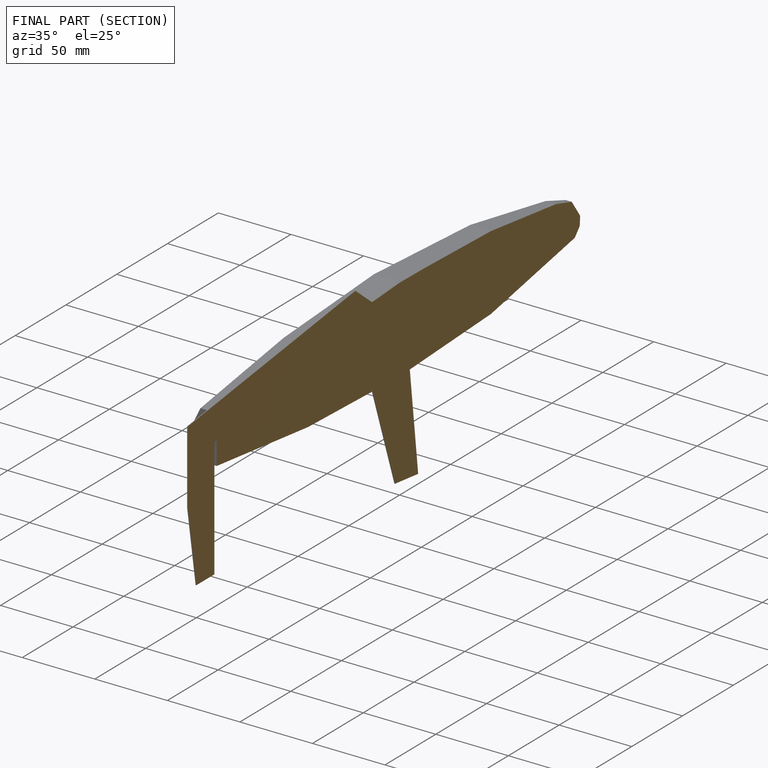
[diagram: finished part — half-section view (interior)]
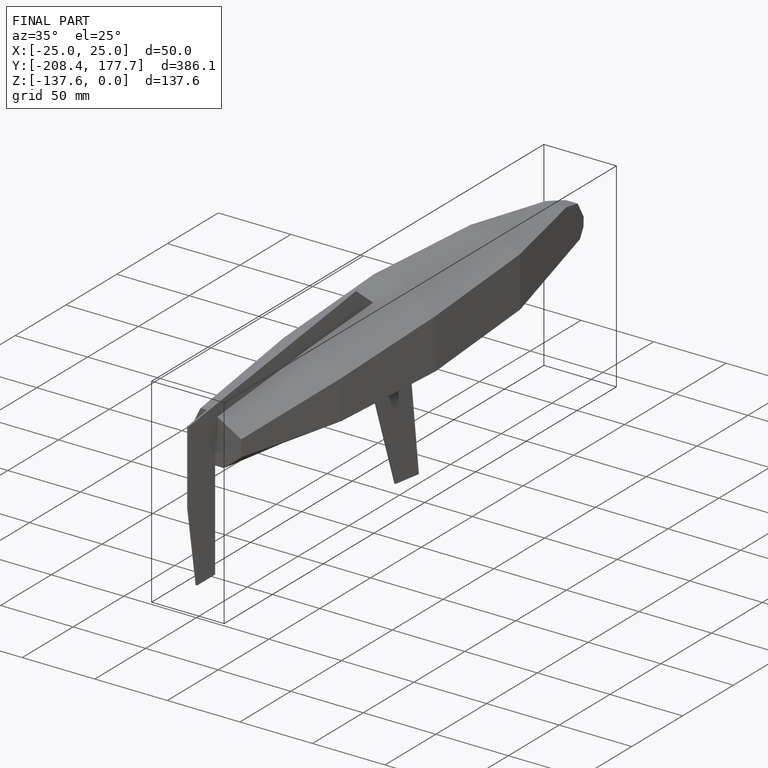
[diagram: finished part — iso view with bounding-box wireframe]
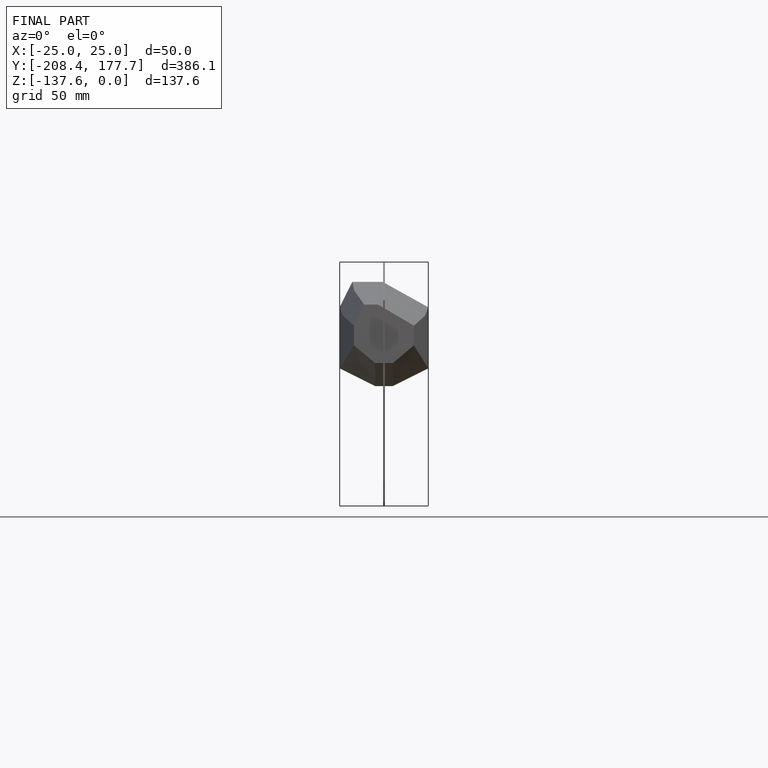
[diagram: finished part — front view with bounding-box wireframe]
